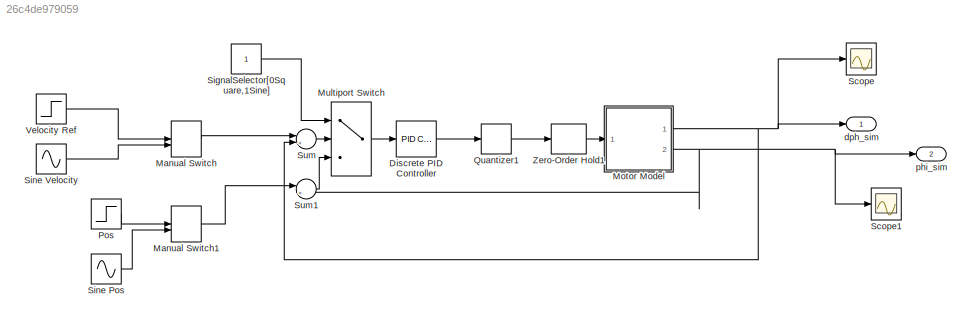
MODEL slx_26c4de979059
KIND model
CONFIG AbsTol = auto
CONFIG EnableMultiTasking = on
CONFIG FixedStep = auto
CONFIG MaxStep = auto
CONFIG MinStep = auto
CONFIG RelTol = 1e-3
CONFIG SampleTimeConstraint = Unconstrained
CONFIG Solver = ode45
CONFIG SolverName = ode45
CONFIG StartTime = 0.0
CONFIG StopTime = 10.0
BLOCK [Reference] Discrete PID Controller  REF=simulink/Continuous/PID Controller
  Ports = [1, 1]
  SourceBlock = simulink/Continuous/PID Controller
  SourceType = PID 1dof
BLOCK [ManualSwitch] Manual Switch
BLOCK [ManualSwitch] Manual Switch1
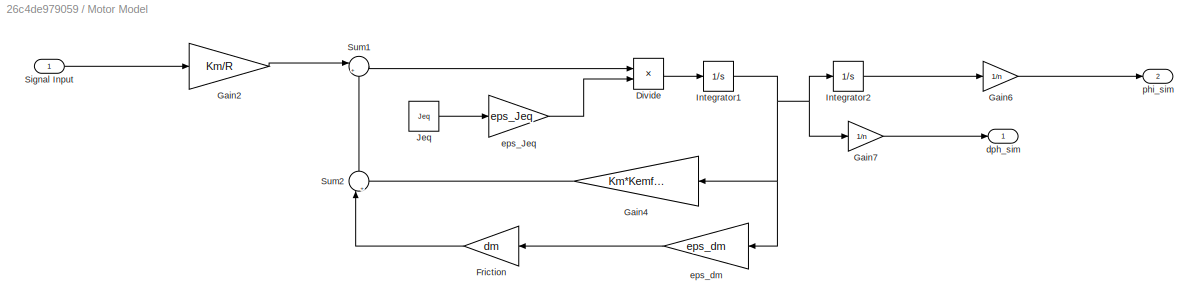
BLOCK [SubSystem] Motor Model
  Ports = [1, 2]
  RequestExecContextInheritance = off
  Variant = off
BLOCK [Product] Motor Model/Divide
  InputSameDT = off
  Inputs = */
  OutDataTypeStr = Inherit: Inherit via internal rule
  Ports = [2, 1]
  RndMeth = Floor
  SaturateOnIntegerOverflow = off
BLOCK [Gain] Motor Model/Friction
  Gain = dm
  OutDataTypeStr = Inherit: Inherit via internal rule
  ParamDataTypeStr = Inherit: Inherit via internal rule
  SaturateOnIntegerOverflow = off
BLOCK [Gain] Motor Model/Gain2
  Gain = Km/R
  OutDataTypeStr = Inherit: Inherit via internal rule
  ParamDataTypeStr = Inherit: Inherit via internal rule
  SaturateOnIntegerOverflow = off
BLOCK [Gain] Motor Model/Gain4
  Gain = Km*Kemf/(R)
  OutDataTypeStr = Inherit: Inherit via internal rule
  ParamDataTypeStr = Inherit: Inherit via internal rule
  SaturateOnIntegerOverflow = off
BLOCK [Gain] Motor Model/Gain6
  Gain = 1/n
  OutDataTypeStr = Inherit: Inherit via internal rule
  ParamDataTypeStr = Inherit: Inherit via internal rule
  SaturateOnIntegerOverflow = off
BLOCK [Gain] Motor Model/Gain7
  Gain = 1/n
  OutDataTypeStr = Inherit: Inherit via internal rule
  ParamDataTypeStr = Inherit: Inherit via internal rule
  SaturateOnIntegerOverflow = off
BLOCK [Integrator] Motor Model/Integrator1
  Ports = [1, 1]
BLOCK [Integrator] Motor Model/Integrator2
  Ports = [1, 1]
BLOCK [Constant] Motor Model/Jeq
  Value = Jeq
BLOCK [Inport] Motor Model/Signal Input
  IconDisplay = Port number
BLOCK [Sum] Motor Model/Sum1
  IconShape = round
  InputSameDT = off
  Inputs = |+-
  OutDataTypeStr = Inherit: Inherit via internal rule
  Ports = [2, 1]
  SaturateOnIntegerOverflow = off
BLOCK [Sum] Motor Model/Sum2
  IconShape = round
  InputSameDT = off
  Inputs = |++
  OutDataTypeStr = Inherit: Inherit via internal rule
  Ports = [2, 1]
  SaturateOnIntegerOverflow = off
BLOCK [Outport] Motor Model/dph_sim
  IconDisplay = Port number
BLOCK [Gain] Motor Model/eps_Jeq
  Gain = eps_Jeq
  OutDataTypeStr = Inherit: Inherit via internal rule
  ParamDataTypeStr = Inherit: Inherit via internal rule
  SaturateOnIntegerOverflow = off
BLOCK [Gain] Motor Model/eps_dm
  Gain = eps_dm
  OutDataTypeStr = Inherit: Inherit via internal rule
  ParamDataTypeStr = Inherit: Inherit via internal rule
  SaturateOnIntegerOverflow = off
BLOCK [Outport] Motor Model/phi_sim
  IconDisplay = Port number
  Port = 2
BLOCK [MultiPortSwitch] Multiport Switch
  InputSameDT = off
  Inputs = 2
  Ports = [3, 1]
  SaturateOnIntegerOverflow = off
BLOCK [Step] Pos
  SampleTime = 0
  Time = 0
BLOCK [Quantizer] Quantizer1
  LinearizeAsGain = off
  QuantizationInterval = Pulses
  SampleTime = Ts
BLOCK [Scope] Scope
  NumInputPorts = 1
  Ports = [1]
  ScopeSpecificationString = Simulink.scopes.TimeScopeBlockCfg('CurrentConfiguration', extmgr.ConfigurationSet(extmgr.Configuration('Core','General UI',true),extmgr.Configuration('Core','Source UI',true),extmgr.Configuration('Sources','WiredSimulink',true,'DataLoggingLimitDataPoints',true,'DataLoggingSaveFormat','Array','DataLoggingDecimation','1','DataLoggingDecimateData',true),extmgr.Configuration('Visuals','Time Domain',tr...<+1639ch>
BLOCK [Scope] Scope1
  NumInputPorts = 1
  Ports = [1]
  ScopeSpecificationString = Simulink.scopes.TimeScopeBlockCfg('CurrentConfiguration', extmgr.ConfigurationSet(extmgr.Configuration('Core','General UI',true),extmgr.Configuration('Core','Source UI',true),extmgr.Configuration('Sources','WiredSimulink',true,'DataLoggingLimitDataPoints',true,'DataLoggingSaveFormat','Array','DataLoggingDecimation','1','DataLoggingDecimateData',true,'DataLoggingVariableName','ScopeData1'),extmgr.C...<+1674ch>
BLOCK [Constant] SignalSelector[0Square,1Sine]
BLOCK [Sin] Sine Pos
  Ports = [0, 1]
  SampleTime = 0
BLOCK [Sin] Sine Velocity
  Ports = [0, 1]
  SampleTime = 0
BLOCK [Sum] Sum
  IconShape = round
  InputSameDT = off
  Inputs = |+-
  OutDataTypeStr = Inherit: Inherit via internal rule
  Ports = [2, 1]
  SaturateOnIntegerOverflow = off
BLOCK [Sum] Sum1
  IconShape = round
  InputSameDT = off
  Inputs = |+-
  OutDataTypeStr = Inherit: Inherit via internal rule
  Ports = [2, 1]
  SaturateOnIntegerOverflow = off
BLOCK [Step] Velocity Ref 
  SampleTime = 0
  Time = 0
BLOCK [ZeroOrderHold] Zero-Order Hold1
  SampleTime = Ts
BLOCK [Outport] dph_sim
  IconDisplay = Port number
BLOCK [Outport] phi_sim
  IconDisplay = Port number
  Port = 2
LINE Discrete PID Controller:1 -> Quantizer1:1
LINE Manual Switch1:1 -> Sum1:1
LINE Manual Switch:1 -> Sum:1
LINE Motor Model/Divide:1 -> Motor Model/Integrator1:1
LINE Motor Model/Friction:1 -> Motor Model/Sum2:1
LINE Motor Model/Gain2:1 -> Motor Model/Sum1:1
LINE Motor Model/Gain4:1 -> Motor Model/Sum2:2
LINE Motor Model/Gain6:1 -> Motor Model/phi_sim:1
LINE Motor Model/Gain7:1 -> Motor Model/dph_sim:1
NET Motor Model/Integrator1:1 -> Motor Model/Gain4:1, Motor Model/Gain7:1, Motor Model/Integrator2:1, Motor Model/eps_dm:1
LINE Motor Model/Integrator2:1 -> Motor Model/Gain6:1
LINE Motor Model/Jeq:1 -> Motor Model/eps_Jeq:1
LINE Motor Model/Signal Input:1 -> Motor Model/Gain2:1
LINE Motor Model/Sum1:1 -> Motor Model/Divide:1
LINE Motor Model/Sum2:1 -> Motor Model/Sum1:2
LINE Motor Model/eps_Jeq:1 -> Motor Model/Divide:2
LINE Motor Model/eps_dm:1 -> Motor Model/Friction:1
NET Motor Model:1 -> Scope:1, Sum:2, dph_sim:1
NET Motor Model:2 -> Scope1:1, Sum1:2, phi_sim:1
LINE Multiport Switch:1 -> Discrete PID Controller:1
LINE Pos:1 -> Manual Switch1:1
LINE Quantizer1:1 -> Zero-Order Hold1:1
LINE SignalSelector[0Square,1Sine]:1 -> Multiport Switch:1
LINE Sine Pos:1 -> Manual Switch1:2
LINE Sine Velocity:1 -> Manual Switch:2
LINE Sum1:1 -> Multiport Switch:3
LINE Sum:1 -> Multiport Switch:2
LINE Velocity Ref :1 -> Manual Switch:1
LINE Zero-Order Hold1:1 -> Motor Model:1
note: NET lines group one-source signal fan-out (src -> all destinations, sorted); 1:1 wires keep LINE
